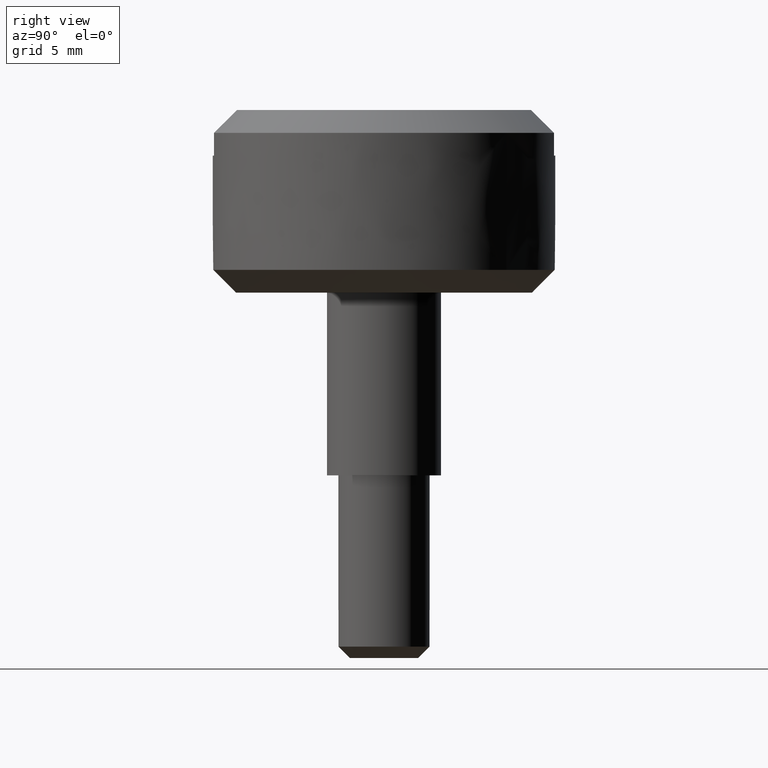
[diagram: clean part render]
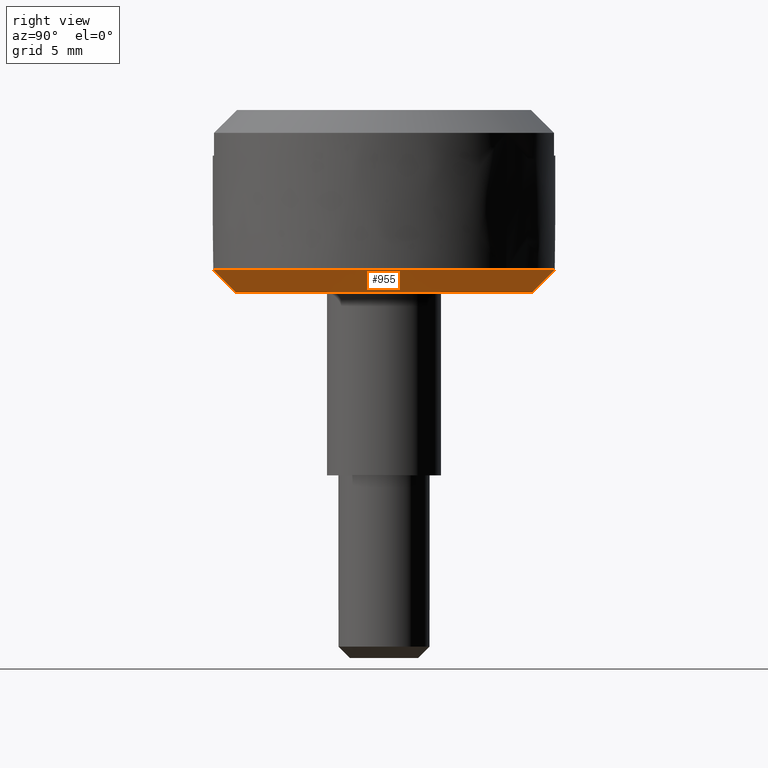
[diagram: same view with one face highlighted and labeled with its STEP entity id]
A machine part, right view. The second image highlights one B-rep face of the part: STEP entity #955.
In plain terms, the highlighted face is a freeform B-spline surface patch.
Its self-contained STEP definition (entity closure, byte-faithful):
#544=CARTESIAN_POINT('',(-0.509984122261655,6.479962669266916,1.796362E-012));
#545=VERTEX_POINT('',#544);
#559=CARTESIAN_POINT('',(6.499999999999978,0.0,0.0));
#560=VERTEX_POINT('',#559);
#561=CARTESIAN_POINT('',(-0.509984122261655,6.479962669266916,1.796362E-012));
#562=CARTESIAN_POINT('',(-0.255385695565416,6.500000000003901,1.763740E-012));
#563=CARTESIAN_POINT('',(-3.223495E-013,6.500000000003821,1.728451E-012));
#564=CARTESIAN_POINT('',(6.499999999999832,6.500000000001836,8.302698E-013));
#565=CARTESIAN_POINT('',(6.499999999999978,0.0,0.0));
#573=(BOUNDED_CURVE()B_SPLINE_CURVE(2,(#561,#562,#563,#564,#565),.UNSPECIFIED.,.F.,.U.)B_SPLINE_CURVE_WITH_KNOTS((3,2,3),(0.236331300631965,0.250000000000000,0.500000000000000),.UNSPECIFIED.)CURVE()GEOMETRIC_REPRESENTATION_ITEM()RATIONAL_B_SPLINE_CURVE((0.969723356170141,0.983986122580411,1.0,0.707106781186547,1.0))REPRESENTATION_ITEM(''));
#574=EDGE_CURVE('',#545,#560,#573,.T.);
#576=CARTESIAN_POINT('',(0.509984122261611,-6.479962669266918,1.801544E-012));
#577=VERTEX_POINT('',#576);
#578=CARTESIAN_POINT('',(6.499999999999978,0.0,0.0));
#579=CARTESIAN_POINT('',(6.500000000000133,-6.008538195752124,-3.136764E-014));
#580=CARTESIAN_POINT('',(0.509984122261611,-6.479962669266918,1.801544E-012));
#588=(BOUNDED_CURVE()B_SPLINE_CURVE(2,(#578,#579,#580),.UNSPECIFIED.,.F.,.U.)B_SPLINE_CURVE_WITH_KNOTS((3,3),(0.500000000000000,0.736331300631965),.UNSPECIFIED.)CURVE()GEOMETRIC_REPRESENTATION_ITEM()RATIONAL_B_SPLINE_CURVE((1.0,0.723120658606137,0.969723356170141))REPRESENTATION_ITEM(''));
#589=EDGE_CURVE('',#560,#577,#588,.T.);
#824=CARTESIAN_POINT('',(-0.588443217979856,7.476880002999542,0.999999999999799));
#825=VERTEX_POINT('',#824);
#839=CARTESIAN_POINT('',(-0.509984122261655,6.479962669266916,1.796362E-012));
#840=CARTESIAN_POINT('',(-0.588443217979856,7.476880002999542,0.999999999999799));
#841=QUASI_UNIFORM_CURVE('',1,(#839,#840),.UNSPECIFIED.,.F.,.U.);
#842=EDGE_CURVE('',#545,#825,#841,.T.);
#846=CARTESIAN_POINT('',(0.588443217979813,-7.476880002999541,0.999999999999799));
#847=VERTEX_POINT('',#846);
#848=CARTESIAN_POINT('',(0.509984122261611,-6.479962669266918,1.801544E-012));
#849=CARTESIAN_POINT('',(0.588443217979813,-7.476880002999541,0.999999999999799));
#850=QUASI_UNIFORM_CURVE('',1,(#848,#849),.UNSPECIFIED.,.F.,.U.);
#851=EDGE_CURVE('',#577,#847,#850,.T.);
#886=CARTESIAN_POINT('',(0.508022644837779,-6.455039735922002,-0.025000000002170));
#887=CARTESIAN_POINT('',(6.963062380759780,-5.947017091084201,-0.025000000002170));
#888=CARTESIAN_POINT('',(6.455039735921980,0.508022644837800,-0.025000000002170));
#889=CARTESIAN_POINT('',(5.947017091084180,6.963062380759801,-0.025000000002170));
#890=CARTESIAN_POINT('',(-0.508022644837821,6.455039735922002,-0.025000000002170));
#891=CARTESIAN_POINT('',(0.590453732286846,-7.502426009675369,1.025624999997053));
#892=CARTESIAN_POINT('',(8.092879741962214,-6.911972277388501,1.025624999997053));
#893=CARTESIAN_POINT('',(7.502426009675348,0.590453732286868,1.025624999997053));
#894=CARTESIAN_POINT('',(6.911972277388481,8.092879741962236,1.025624999997053));
#895=CARTESIAN_POINT('',(-0.590453732286889,7.502426009675369,1.025624999997053));
#903=(BOUNDED_SURFACE()B_SPLINE_SURFACE(2,1,((#886,#891),(#887,#892),(#888,#893),(#889,#894),(#890,#895)),.UNSPECIFIED.,.F.,.F.,.U.)B_SPLINE_SURFACE_WITH_KNOTS((3,2,3),(2,2),(0.0,12.468863761336090,24.937727522672180),(0.0,1.0),.UNSPECIFIED.)GEOMETRIC_REPRESENTATION_ITEM()RATIONAL_B_SPLINE_SURFACE(((1.0,1.0),(0.707106781186548,0.707106781186548),(1.0,1.0),(0.707106781186548,0.707106781186548),(1.0,1.0)))REPRESENTATION_ITEM('')SURFACE());
#904=CARTESIAN_POINT('',(5.246736314149729,5.359268424867546,0.999999999997070));
#905=VERTEX_POINT('',#904);
#906=CARTESIAN_POINT('',(-0.588443217979856,7.476880002999542,0.999999999999799));
#907=CARTESIAN_POINT('',(-0.294675802568189,7.500000000002601,0.999999999999681));
#908=CARTESIAN_POINT('',(-2.167448E-013,7.500000000002480,0.999999999999559));
#909=CARTESIAN_POINT('',(3.060090283209633,7.500000000001220,0.999999999998295));
#910=CARTESIAN_POINT('',(5.246736314149730,5.359268424867546,0.999999999997070));
#918=(BOUNDED_CURVE()B_SPLINE_CURVE(2,(#906,#907,#908,#909,#910),.UNSPECIFIED.,.F.,.U.)B_SPLINE_CURVE_WITH_KNOTS((3,2,3),(0.236331300632290,0.250000000000000,0.373399085536409),.UNSPECIFIED.)CURVE()GEOMETRIC_REPRESENTATION_ITEM()RATIONAL_B_SPLINE_CURVE((0.969723356170821,0.983986122580793,1.0,0.855428978554418,0.853577411840432))REPRESENTATION_ITEM(''));
#919=EDGE_CURVE('',#825,#905,#918,.T.);
#920=ORIENTED_EDGE('',*,*,#919,.T.);
#921=CARTESIAN_POINT('',(7.499999999999978,0.0,0.999999999997072));
#922=VERTEX_POINT('',#921);
#923=CARTESIAN_POINT('',(5.246736314149730,5.359268424867548,0.999999999997072));
#924=CARTESIAN_POINT('',(7.499999999999978,3.153318009872686,0.999999999997072));
#925=CARTESIAN_POINT('',(7.499999999999978,0.0,0.999999999997072));
#933=(BOUNDED_CURVE()B_SPLINE_CURVE(2,(#923,#924,#925),.UNSPECIFIED.,.F.,.U.)B_SPLINE_CURVE_WITH_KNOTS((3,3),(0.373399085536409,0.500000000000000),.UNSPECIFIED.)CURVE()GEOMETRIC_REPRESENTATION_ITEM()RATIONAL_B_SPLINE_CURVE((0.853577411840432,0.851677802632129,1.0))REPRESENTATION_ITEM(''));
#934=EDGE_CURVE('',#905,#922,#933,.T.);
#935=ORIENTED_EDGE('',*,*,#934,.T.);
#936=CARTESIAN_POINT('',(7.499999999999978,0.0,0.999999999997072));
#937=CARTESIAN_POINT('',(7.500000000000084,-6.932928687418578,0.999999999998435));
#938=CARTESIAN_POINT('',(0.588443217979813,-7.476880002999541,0.999999999999799));
#946=(BOUNDED_CURVE()B_SPLINE_CURVE(2,(#936,#937,#938),.UNSPECIFIED.,.F.,.U.)B_SPLINE_CURVE_WITH_KNOTS((3,3),(0.500000000000000,0.736331300632290),.UNSPECIFIED.)CURVE()GEOMETRIC_REPRESENTATION_ITEM()RATIONAL_B_SPLINE_CURVE((1.0,0.723120658605755,0.969723356170821))REPRESENTATION_ITEM(''));
#947=EDGE_CURVE('',#922,#847,#946,.T.);
#948=ORIENTED_EDGE('',*,*,#947,.T.);
#949=ORIENTED_EDGE('',*,*,#851,.F.);
#950=ORIENTED_EDGE('',*,*,#589,.F.);
#951=ORIENTED_EDGE('',*,*,#574,.F.);
#952=ORIENTED_EDGE('',*,*,#842,.T.);
#953=EDGE_LOOP('',(#920,#935,#948,#949,#950,#951,#952));
#954=FACE_OUTER_BOUND('',#953,.T.);
#955=ADVANCED_FACE('',(#954),#903,.T.);